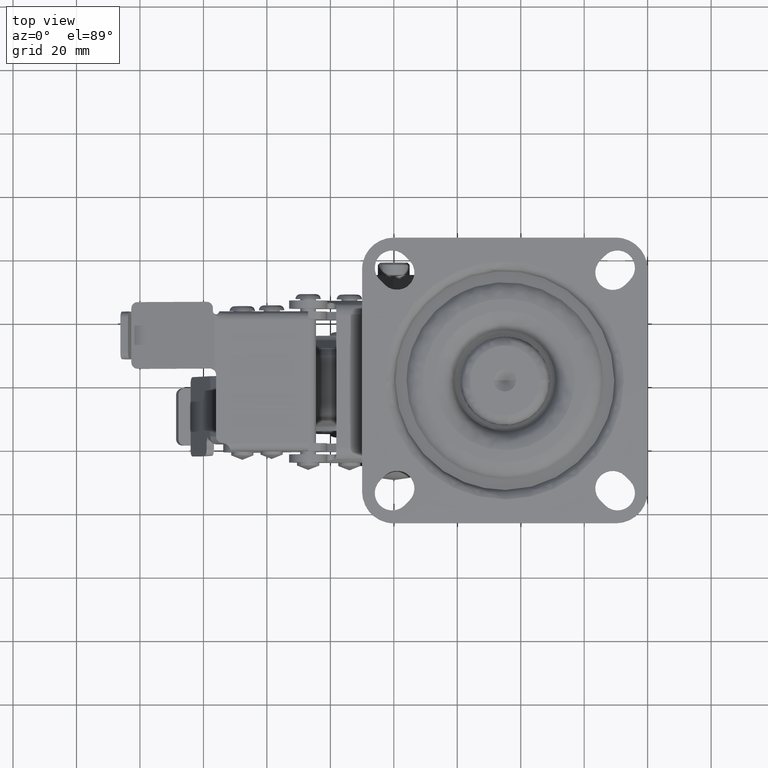
[diagram: clean part render]
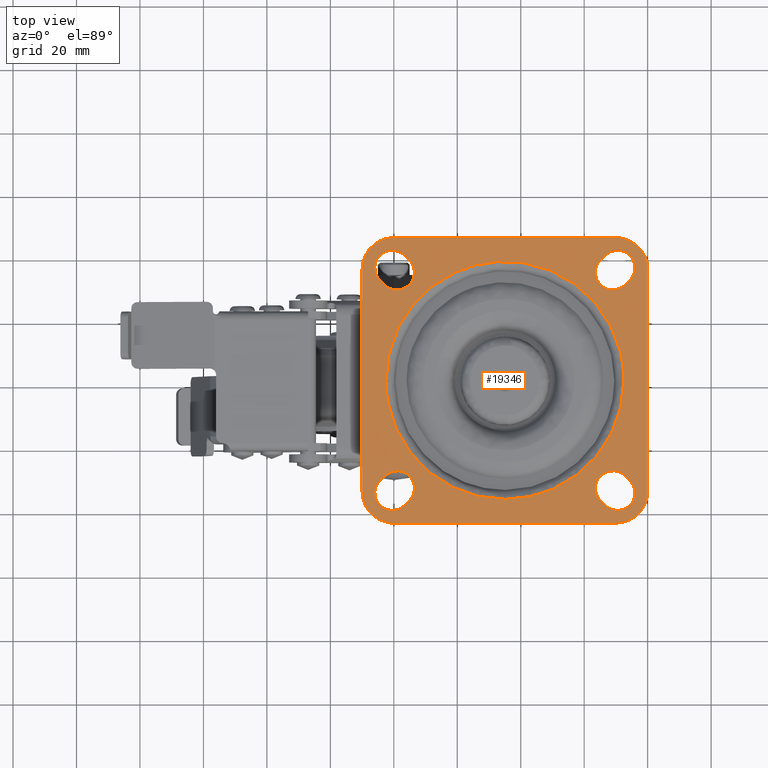
[diagram: same view with one face highlighted and labeled with its STEP entity id]
A machine part, top view. The second image highlights one B-rep face of the part: STEP entity #19346.
In plain terms, the highlighted face is a freeform B-spline surface patch.
Its self-contained STEP definition (entity closure, byte-faithful):
#18010=CARTESIAN_POINT('',(-2.497039154605587,-0.471226495959398,82.000007999999980));
#18011=VERTEX_POINT('',#18010);
#18023=CARTESIAN_POINT('',(35.235554214804182,-37.499260182194099,82.000007999999994));
#18024=VERTEX_POINT('',#18023);
#18025=CARTESIAN_POINT('',(35.235554214804182,-37.499260182194099,82.000007999999994));
#18026=CARTESIAN_POINT('',(32.714630536343812,-37.515489606949863,82.000008000000065));
#18027=CARTESIAN_POINT('',(28.587079304573741,-37.123354049378513,82.000008000000051));
#18028=CARTESIAN_POINT('',(22.964181417716240,-35.630155519232389,82.000007999999823));
#18029=CARTESIAN_POINT('',(18.858502447904090,-33.937861380260308,82.000008000000264));
#18030=CARTESIAN_POINT('',(15.108584460882710,-31.869620799225519,82.000007999999710));
#18031=CARTESIAN_POINT('',(11.402626283903940,-29.291095814778089,82.000008000000136));
#18032=CARTESIAN_POINT('',(7.958864775778971,-26.131642025318410,82.000008000000548));
#18033=CARTESIAN_POINT('',(4.558158955052188,-22.094989410288321,82.000008000000221));
#18034=CARTESIAN_POINT('',(1.476761524604560,-17.241596868981521,82.000007999997834));
#18035=CARTESIAN_POINT('',(-0.731860585724287,-11.844099561781110,82.000008000001145));
#18036=CARTESIAN_POINT('',(-2.124489622247507,-6.119935745697549,82.000007999999639));
#18037=CARTESIAN_POINT('',(-2.470335985499150,-2.610047431215478,82.000007999998616));
#18038=CARTESIAN_POINT('',(-2.497039154605587,-0.471226495959398,82.000007999999980));
#18039=B_SPLINE_CURVE_WITH_KNOTS('',3,(#18025,#18026,#18027,#18028,#18029,#18030,#18031,#18032,#18033,#18034,#18035,#18036,#18037,#18038),.UNSPECIFIED.,.F.,.U.,(4,1,1,1,1,1,1,1,1,1,1,4),(0.000000086311573,7.562834784167471,12.375538968031369,17.417447009429729,20.855121964354840,25.209457417956759,30.938866167068600,34.834864105559959,41.022652077722213,48.127156090349963,52.252332436948237,58.669270417802103),.UNSPECIFIED.);
#18040=EDGE_CURVE('',#18024,#18011,#18039,.T.);
#18042=CARTESIAN_POINT('',(72.500000000000014,0.0,82.000007999999994));
#18043=VERTEX_POINT('',#18042);
#18044=CARTESIAN_POINT('',(72.500000000000014,0.0,82.000007999999994));
#18045=CARTESIAN_POINT('',(72.500378866690426,-2.520977955862390,82.000007999999994));
#18046=CARTESIAN_POINT('',(72.059164735528000,-6.875178925467560,82.000008000000122));
#18047=CARTESIAN_POINT('',(70.415865282438034,-12.699029120922081,82.000007999999809));
#18048=CARTESIAN_POINT('',(68.159419752960616,-17.812579061629020,82.000008000000136));
#18049=CARTESIAN_POINT('',(64.956795962774990,-22.861399522204920,82.000007999999852));
#18050=CARTESIAN_POINT('',(61.093528790800661,-27.122861305328069,82.000008000000250));
#18051=CARTESIAN_POINT('',(57.368276375380340,-30.182757991823710,82.000007999999696));
#18052=CARTESIAN_POINT('',(53.412344381982329,-32.796315888213392,82.000008000000378));
#18053=CARTESIAN_POINT('',(48.447386572119719,-35.209665584720298,82.000007999998303));
#18054=CARTESIAN_POINT('',(42.031641781101818,-37.042122967330783,82.000008000003660));
#18055=CARTESIAN_POINT('',(37.527286537133008,-37.485086137952919,82.000007999996697));
#18056=CARTESIAN_POINT('',(35.235554214804182,-37.499260182194099,82.000007999999994));
#18057=B_SPLINE_CURVE_WITH_KNOTS('',3,(#18044,#18045,#18046,#18047,#18048,#18049,#18050,#18051,#18052,#18053,#18054,#18055,#18056),.UNSPECIFIED.,.F.,.U.,(4,1,1,1,1,1,1,1,1,1,4),(0.000000086352991,7.562851203666760,13.063101389802430,18.105012435851400,24.292816149095689,30.938933336976859,35.293267951448762,38.730968472310053,45.147940700554869,51.794109981902942,58.669397792104590),.UNSPECIFIED.);
#18058=EDGE_CURVE('',#18043,#18024,#18057,.T.);
#18060=CARTESIAN_POINT('',(32.385003065849290,37.408712768289988,82.000007999999980));
#18061=VERTEX_POINT('',#18060);
#18062=CARTESIAN_POINT('',(32.385003065849290,37.408712768289988,82.000007999999980));
#18063=CARTESIAN_POINT('',(34.782352440099622,37.576614847147859,82.000007999999738));
#18064=CARTESIAN_POINT('',(38.965691095116320,37.465865226568127,82.000008000000278));
#18065=CARTESIAN_POINT('',(44.325142756866661,36.418642260895460,82.000007999999895));
#18066=CARTESIAN_POINT('',(48.977780544333619,34.904007247510023,82.000007999999738));
#18067=CARTESIAN_POINT('',(53.048104727285889,32.989355933353700,82.000007999998687));
#18068=CARTESIAN_POINT('',(56.700348018754802,30.659284331476130,82.000008000001216));
#18069=CARTESIAN_POINT('',(59.786959318731213,28.227982971412139,82.000007999998871));
#18070=CARTESIAN_POINT('',(62.725620860025309,25.380056440555290,82.000008000000705));
#18071=CARTESIAN_POINT('',(65.459088632650207,22.017072683595920,82.000007999999738));
#18072=CARTESIAN_POINT('',(68.002040508444949,18.024862750126861,82.000008000000037));
#18073=CARTESIAN_POINT('',(70.050449058308118,13.662363940467900,82.000007999999809));
#18074=CARTESIAN_POINT('',(71.479220367864528,9.062866929131930,82.000008000000221));
#18075=CARTESIAN_POINT('',(72.309755564689567,4.566056488875709,82.000007999999710));
#18076=CARTESIAN_POINT('',(72.500054890113745,1.602132972271289,82.000008000000363));
#18077=CARTESIAN_POINT('',(72.500000000000014,0.0,82.000007999999994));
#18078=B_SPLINE_CURVE_WITH_KNOTS('',3,(#18062,#18063,#18064,#18065,#18066,#18067,#18068,#18069,#18070,#18071,#18072,#18073,#18074,#18075,#18076,#18077),.UNSPECIFIED.,.F.,.U.,(4,1,1,1,1,1,1,1,1,1,1,1,1,4),(0.000000092225712,7.209607568320955,12.496672582436849,16.341809702088479,21.869211168711200,25.954635965179168,29.319183782432720,33.644891076499768,38.210981644563383,42.296417544662702,47.823813352992119,52.630254655560186,56.715689127988739,61.522088451961103),.UNSPECIFIED.);
#18079=EDGE_CURVE('',#18061,#18043,#18078,.T.);
#18133=CARTESIAN_POINT('',(-2.499999999999995,0.0,82.000007999999994));
#18134=VERTEX_POINT('',#18133);
#18135=CARTESIAN_POINT('',(-2.499999999999995,0.0,82.000007999999994));
#18136=CARTESIAN_POINT('',(-2.500393609741418,2.565216084379840,82.000007999999625));
#18137=CARTESIAN_POINT('',(-2.046940660496134,6.962542342685151,82.000008000000562));
#18138=CARTESIAN_POINT('',(-0.511396397934136,12.332424091802229,82.000007999999681));
#18139=CARTESIAN_POINT('',(1.254732896417628,16.524675141024751,82.000008000000179));
#18140=CARTESIAN_POINT('',(3.572878477376494,20.696921612989819,82.000007999999212));
#18141=CARTESIAN_POINT('',(6.691592514130061,24.792306217448608,82.000008000001131));
#18142=CARTESIAN_POINT('',(10.201970494277100,28.239326475741709,82.000007999999852));
#18143=CARTESIAN_POINT('',(14.022717558681061,31.216903573872870,82.000008000000037));
#18144=CARTESIAN_POINT('',(18.082363496772778,33.595902034438097,82.000008000000022));
#18145=CARTESIAN_POINT('',(22.282767916813640,35.347927474019542,82.000008000000022));
#18146=CARTESIAN_POINT('',(26.849236815848499,36.723613253371077,82.000007999999994));
#18147=CARTESIAN_POINT('',(30.191594265726131,37.255594489508887,82.000008000000008));
#18148=CARTESIAN_POINT('',(32.385003065849290,37.408712768289988,82.000007999999980));
#18149=B_SPLINE_CURVE_WITH_KNOTS('',3,(#18135,#18136,#18137,#18138,#18139,#18140,#18141,#18142,#18143,#18144,#18145,#18146,#18147,#18148),.UNSPECIFIED.,.F.,.U.,(4,1,1,1,1,1,1,1,1,1,1,4),(0.000000082031747,7.695572833180087,13.192457720246740,16.710456669872759,21.327824882276520,27.484304545574378,32.101610550298687,36.059358163248930,41.995991370556148,46.173606932098842,49.691625696154432,56.287821960768092),.UNSPECIFIED.);
#18150=EDGE_CURVE('',#18134,#18061,#18149,.T.);
#18152=CARTESIAN_POINT('',(-2.497039154605587,-0.471226495959398,82.000007999999980));
#18153=CARTESIAN_POINT('',(-2.499999999999995,0.0,82.000007999999994));
#18154=QUASI_UNIFORM_CURVE('',1,(#18152,#18153),.UNSPECIFIED.,.F.,.U.);
#18155=EDGE_CURVE('',#18011,#18134,#18154,.T.);
#18936=CARTESIAN_POINT('',(-14.495499825562540,49.495499825562533,82.000007999999994));
#18937=CARTESIAN_POINT('',(84.495502239550646,49.495499825562533,82.000007999999994));
#18938=CARTESIAN_POINT('',(-14.495499825562540,-49.495502239550653,82.000007999999994));
#18939=CARTESIAN_POINT('',(84.495502239550646,-49.495502239550653,82.000007999999994));
#18940=B_SPLINE_SURFACE_WITH_KNOTS('',1,1,((#18936,#18938),(#18937,#18939)),.UNSPECIFIED.,.F.,.F.,.U.,(2,2),(2,2),(0.0,98.991002065113179),(0.0,98.991002065113179),.UNSPECIFIED.);
#18941=CARTESIAN_POINT('',(80.0,35.0,82.000008000000093));
#18942=VERTEX_POINT('',#18941);
#18943=CARTESIAN_POINT('',(70.0,45.0,82.000008000000093));
#18944=VERTEX_POINT('',#18943);
#18945=CARTESIAN_POINT('',(80.0,35.0,82.000008000000093));
#18946=CARTESIAN_POINT('',(80.000073907968599,35.654488945471662,82.000008000000221));
#18947=CARTESIAN_POINT('',(79.867023230522676,37.004367228682057,82.000007999999823));
#18948=CARTESIAN_POINT('',(79.209497551188136,39.125826772463910,82.000008000000449));
#18949=CARTESIAN_POINT('',(78.034143133678512,41.114244687521300,82.000007999999838));
#18950=CARTESIAN_POINT('',(76.338292263899817,42.852220574667257,82.000008000000889));
#18951=CARTESIAN_POINT('',(74.423159077679401,44.064941585787039,82.000007999999525));
#18952=CARTESIAN_POINT('',(72.249772190104068,44.827454906135060,82.000008000000904));
#18953=CARTESIAN_POINT('',(70.777227325805100,45.000144159784810,82.000007999999255));
#18954=CARTESIAN_POINT('',(70.0,45.0,82.000008000000093));
#18955=B_SPLINE_CURVE_WITH_KNOTS('',3,(#18945,#18946,#18947,#18948,#18949,#18950,#18951,#18952,#18953,#18954),.UNSPECIFIED.,.F.,.U.,(4,1,1,1,1,1,1,4),(0.000000162030521,1.963473488997209,4.049735908099901,6.626885396654943,8.835779466863569,11.290160716892750,13.376402627561211,15.708061828758940),.UNSPECIFIED.);
#18956=EDGE_CURVE('',#18942,#18944,#18955,.T.);
#18957=ORIENTED_EDGE('',*,*,#18956,.T.);
#18958=CARTESIAN_POINT('',(0.0,45.0,82.000008000000093));
#18959=VERTEX_POINT('',#18958);
#18960=CARTESIAN_POINT('',(70.0,45.0,82.000008000000093));
#18961=CARTESIAN_POINT('',(0.0,45.0,82.000008000000093));
#18962=QUASI_UNIFORM_CURVE('',1,(#18960,#18961),.UNSPECIFIED.,.F.,.U.);
#18963=EDGE_CURVE('',#18944,#18959,#18962,.T.);
#18964=ORIENTED_EDGE('',*,*,#18963,.T.);
#18965=CARTESIAN_POINT('',(-10.0,34.999999127335300,82.000008000000093));
#18966=VERTEX_POINT('',#18965);
#18967=CARTESIAN_POINT('',(0.0,45.0,82.000008000000093));
#18968=CARTESIAN_POINT('',(-0.818139542186070,45.000216879241293,82.000007999999994));
#18969=CARTESIAN_POINT('',(-2.086112042009881,44.843463525559578,82.000008000000022));
#18970=CARTESIAN_POINT('',(-3.958547289035787,44.237634177039943,82.000008000000179));
#18971=CARTESIAN_POINT('',(-5.450577549837250,43.451870951399712,82.000008000000179));
#18972=CARTESIAN_POINT('',(-6.899337968263791,42.306790803401157,82.000007999999525));
#18973=CARTESIAN_POINT('',(-8.269547605160046,40.776572168003533,82.000008000000463));
#18974=CARTESIAN_POINT('',(-9.304631283742676,38.896129211966823,82.000007999999895));
#18975=CARTESIAN_POINT('',(-9.886663818935062,36.840731728854379,82.000008000000278));
#18976=CARTESIAN_POINT('',(-10.000061134689320,35.613588896925187,82.000007999999951));
#18977=CARTESIAN_POINT('',(-10.0,34.999999127335300,82.000008000000093));
#18978=B_SPLINE_CURVE_WITH_KNOTS('',3,(#18967,#18968,#18969,#18970,#18971,#18972,#18973,#18974,#18975,#18976,#18977),.UNSPECIFIED.,.F.,.U.,(4,1,1,1,1,1,1,1,4),(0.000000161852675,2.454359935840492,3.804295021906183,5.890528464199390,7.485920605631939,9.326650025769581,12.026485992671390,13.867290678295850,15.708062320610400),.UNSPECIFIED.);
#18979=EDGE_CURVE('',#18959,#18966,#18978,.T.);
#18980=ORIENTED_EDGE('',*,*,#18979,.T.);
#18981=CARTESIAN_POINT('',(-10.0,-35.0,82.000008000000093));
#18982=VERTEX_POINT('',#18981);
#18983=CARTESIAN_POINT('',(-10.0,34.999999127335300,82.000008000000093));
#18984=CARTESIAN_POINT('',(-10.0,-35.0,82.000008000000093));
#18985=QUASI_UNIFORM_CURVE('',1,(#18983,#18984),.UNSPECIFIED.,.F.,.U.);
#18986=EDGE_CURVE('',#18966,#18982,#18985,.T.);
#18987=ORIENTED_EDGE('',*,*,#18986,.T.);
#18988=CARTESIAN_POINT('',(-0.000000523598811,-45.0,82.000008000000093));
#18989=VERTEX_POINT('',#18988);
#18990=CARTESIAN_POINT('',(-10.0,-35.0,82.000008000000093));
#18991=CARTESIAN_POINT('',(-10.000087786441229,-35.654494677795952,82.000008000000093));
#18992=CARTESIAN_POINT('',(-9.875052767093189,-36.922548369941033,82.000008000000136));
#18993=CARTESIAN_POINT('',(-9.314346527419971,-38.812982889761763,82.000007999999852));
#18994=CARTESIAN_POINT('',(-8.413553271820335,-40.523382826680333,82.000008000000719));
#18995=CARTESIAN_POINT('',(-7.249558151524193,-41.959489289909087,82.000007999999369));
#18996=CARTESIAN_POINT('',(-6.044115436691523,-43.012222876350187,82.000008000001216));
#18997=CARTESIAN_POINT('',(-4.664007237898335,-43.898113950886703,82.000007999998218));
#18998=CARTESIAN_POINT('',(-2.699540338132075,-44.740369538220023,82.000008000001799));
#18999=CARTESIAN_POINT('',(-1.022717224599562,-45.000540426067239,82.000007999999454));
#19000=CARTESIAN_POINT('',(-0.000000523598811,-45.0,82.000008000000093));
#19001=B_SPLINE_CURVE_WITH_KNOTS('',3,(#18990,#18991,#18992,#18993,#18994,#18995,#18996,#18997,#18998,#18999,#19000),.UNSPECIFIED.,.F.,.U.,(4,1,1,1,1,1,1,1,4),(0.000000162090448,1.963473452165475,3.804294831523768,5.890528169568537,7.731358103499349,9.326649559275452,10.676570357555409,12.640095863441740,15.708061533648239),.UNSPECIFIED.);
#19002=EDGE_CURVE('',#18982,#18989,#19001,.T.);
#19003=ORIENTED_EDGE('',*,*,#19002,.T.);
#19004=CARTESIAN_POINT('',(70.0,-45.0,82.000008000000093));
#19005=VERTEX_POINT('',#19004);
#19006=CARTESIAN_POINT('',(-0.000000523598811,-45.0,82.000008000000093));
#19007=CARTESIAN_POINT('',(70.0,-45.0,82.000008000000093));
#19008=QUASI_UNIFORM_CURVE('',1,(#19006,#19007),.UNSPECIFIED.,.F.,.U.);
#19009=EDGE_CURVE('',#18989,#19005,#19008,.T.);
#19010=ORIENTED_EDGE('',*,*,#19009,.T.);
#19011=CARTESIAN_POINT('',(80.0,-35.0,82.000008000000093));
#19012=VERTEX_POINT('',#19011);
#19013=CARTESIAN_POINT('',(70.0,-45.0,82.000008000000093));
#19014=CARTESIAN_POINT('',(70.654491713493385,-45.000083564249401,82.000007999999980));
#19015=CARTESIAN_POINT('',(71.840729655913407,-44.883093706141551,82.000008000000349));
#19016=CARTESIAN_POINT('',(73.735952833826758,-44.346249776582873,82.000008000000037));
#19017=CARTESIAN_POINT('',(75.386183723378196,-43.502777694459887,82.000007999999752));
#19018=CARTESIAN_POINT('',(76.995996078140081,-42.230513810341002,82.000008000000506));
#19019=CARTESIAN_POINT('',(78.393959541517816,-40.610058543014922,82.000007999999994));
#19020=CARTESIAN_POINT('',(79.388853167542450,-38.663513669082427,82.000008000000108));
#19021=CARTESIAN_POINT('',(79.901318878623826,-36.718016581546550,82.000008000000122));
#19022=CARTESIAN_POINT('',(80.000045159082930,-35.572675513106503,82.000008000000648));
#19023=CARTESIAN_POINT('',(80.0,-35.0,82.000008000000093));
#19024=B_SPLINE_CURVE_WITH_KNOTS('',3,(#19013,#19014,#19015,#19016,#19017,#19018,#19019,#19020,#19021,#19022,#19023),.UNSPECIFIED.,.F.,.U.,(4,1,1,1,1,1,1,1,4),(0.000000162004154,1.963473488975795,3.558856671220649,5.890528280057204,7.485920371103386,9.694802587288667,12.271932114299780,13.990030007249290,15.708061828758900),.UNSPECIFIED.);
#19025=EDGE_CURVE('',#19005,#19012,#19024,.T.);
#19026=ORIENTED_EDGE('',*,*,#19025,.T.);
#19027=CARTESIAN_POINT('',(80.0,-35.0,82.000008000000093));
#19028=CARTESIAN_POINT('',(80.0,35.0,82.000008000000093));
#19029=QUASI_UNIFORM_CURVE('',1,(#19027,#19028),.UNSPECIFIED.,.F.,.U.);
#19030=EDGE_CURVE('',#19012,#18942,#19029,.T.);
#19031=ORIENTED_EDGE('',*,*,#19030,.T.);
#19032=EDGE_LOOP('',(#18957,#18964,#18980,#18987,#19003,#19010,#19026,#19031));
#19033=FACE_OUTER_BOUND('',#19032,.T.);
#19034=CARTESIAN_POINT('',(3.389087228648650,39.389087364403352,82.000008000000093));
#19035=VERTEX_POINT('',#19034);
#19036=CARTESIAN_POINT('',(4.889087228648620,37.889087364403402,82.000008000000093));
#19037=VERTEX_POINT('',#19036);
#19038=CARTESIAN_POINT('',(3.389087228648650,39.389087364403352,82.000008000000093));
#19039=CARTESIAN_POINT('',(4.889087228648620,37.889087364403402,82.000008000000093));
#19040=QUASI_UNIFORM_CURVE('',1,(#19038,#19039),.UNSPECIFIED.,.F.,.U.);
#19041=EDGE_CURVE('',#19035,#19037,#19040,.T.);
#19042=ORIENTED_EDGE('',*,*,#19041,.T.);
#19043=CARTESIAN_POINT('',(4.889087342201306,30.110912749149289,82.000008000000079));
#19044=VERTEX_POINT('',#19043);
#19045=CARTESIAN_POINT('',(4.889087342201306,30.110912749149289,82.000008000000079));
#19046=CARTESIAN_POINT('',(5.366893980975049,30.587794935507599,82.000008000000420));
#19047=CARTESIAN_POINT('',(5.935518868609748,31.418458933793520,82.000007999999710));
#19048=CARTESIAN_POINT('',(6.390893468254395,32.742449814722377,82.000008000000037));
#19049=CARTESIAN_POINT('',(6.534092294941371,33.796626555466261,82.000008000000904));
#19050=CARTESIAN_POINT('',(6.456372559844438,34.946306209121417,82.000007999999340));
#19051=CARTESIAN_POINT('',(6.190736129876738,35.906188944542023,82.000008000000506));
#19052=CARTESIAN_POINT('',(5.692619875506923,36.942787608281783,82.000008000000051));
#19053=CARTESIAN_POINT('',(5.239221596268012,37.539202702129430,82.000008000000349));
#19054=CARTESIAN_POINT('',(4.889087228648620,37.889087364403402,82.000008000000093));
#19055=B_SPLINE_CURVE_WITH_KNOTS('',3,(#19045,#19046,#19047,#19048,#19049,#19050,#19051,#19052,#19053,#19054),.UNSPECIFIED.,.F.,.U.,(4,1,1,1,1,1,1,4),(0.000000205958507,2.024865500902002,2.969815811631286,4.184753137689488,5.197134094550249,6.412079437642705,7.154538742971457,8.639434023529429),.UNSPECIFIED.);
#19056=EDGE_CURVE('',#19044,#19037,#19055,.T.);
#19057=ORIENTED_EDGE('',*,*,#19056,.F.);
#19058=CARTESIAN_POINT('',(-2.889087296525990,30.110912703473950,82.000008000000093));
#19059=VERTEX_POINT('',#19058);
#19060=CARTESIAN_POINT('',(-2.889087296525990,30.110912703473950,82.000008000000093));
#19061=CARTESIAN_POINT('',(-2.555080533373290,29.776754833366450,82.000008000000108));
#19062=CARTESIAN_POINT('',(-1.764345029301171,29.167550867857031,82.000008000000577));
#19063=CARTESIAN_POINT('',(-0.459503242915323,28.636345288663509,82.000007999998573));
#19064=CARTESIAN_POINT('',(0.796640422228880,28.465926517314351,82.000008000002325));
#19065=CARTESIAN_POINT('',(1.946310795769874,28.543634914953049,82.000007999998459));
#19066=CARTESIAN_POINT('',(2.906180183911404,28.809272490325451,82.000008000000349));
#19067=CARTESIAN_POINT('',(3.942798980214220,29.307352648186040,82.000008000001671));
#19068=CARTESIAN_POINT('',(4.539198351572574,29.760789884785119,82.000007999998942));
#19069=CARTESIAN_POINT('',(4.889087342201306,30.110912749149289,82.000008000000079));
#19070=B_SPLINE_CURVE_WITH_KNOTS('',3,(#19060,#19061,#19062,#19063,#19064,#19065,#19066,#19067,#19068,#19069),.UNSPECIFIED.,.F.,.U.,(4,1,1,1,1,1,1,4),(0.000000205965737,1.417387216606544,2.969815818072879,4.184753146777508,5.197134105830720,6.412079451530653,7.154538758477041,8.639434042239317),.UNSPECIFIED.);
#19071=EDGE_CURVE('',#19059,#19044,#19070,.T.);
#19072=ORIENTED_EDGE('',*,*,#19071,.F.);
#19073=CARTESIAN_POINT('',(-4.389086000000001,31.610914000000040,82.000008000000093));
#19074=VERTEX_POINT('',#19073);
#19075=CARTESIAN_POINT('',(-2.889087296525990,30.110912703473950,82.000008000000093));
#19076=CARTESIAN_POINT('',(-4.389086000000001,31.610914000000040,82.000008000000093));
#19077=QUASI_UNIFORM_CURVE('',1,(#19075,#19076),.UNSPECIFIED.,.F.,.U.);
#19078=EDGE_CURVE('',#19059,#19074,#19077,.T.);
#19079=ORIENTED_EDGE('',*,*,#19078,.T.);
#19080=CARTESIAN_POINT('',(-4.389088323057218,39.389086269994081,82.000008000000108));
#19081=VERTEX_POINT('',#19080);
#19082=CARTESIAN_POINT('',(-4.389088323057218,39.389086269994081,82.000008000000108));
#19083=CARTESIAN_POINT('',(-4.659577257576263,39.118677911791778,82.000008000000477));
#19084=CARTESIAN_POINT('',(-5.158016793943738,38.503541522648469,82.000007999999681));
#19085=CARTESIAN_POINT('',(-5.697509600256539,37.431958854150871,82.000008000000136));
#19086=CARTESIAN_POINT('',(-5.950448238753430,36.421875181572460,82.000008000000221));
#19087=CARTESIAN_POINT('',(-6.026686193404989,35.387808648108937,82.000008000000136));
#19088=CARTESIAN_POINT('',(-5.909342091436415,34.193823584539452,82.000007999999880));
#19089=CARTESIAN_POINT('',(-5.385326587775912,32.810109837362269,82.000008000001074));
#19090=CARTESIAN_POINT('',(-4.739147458544208,31.960827513752800,82.000007999999667));
#19091=CARTESIAN_POINT('',(-4.389086000000001,31.610914000000040,82.000008000000093));
#19092=B_SPLINE_CURVE_WITH_KNOTS('',3,(#19082,#19083,#19084,#19085,#19086,#19087,#19088,#19089,#19090,#19091),.UNSPECIFIED.,.F.,.U.,(4,1,1,1,1,1,1,4),(0.000000206227456,1.147409377229230,2.362346005353661,3.577287894132375,4.252282096908106,5.467109985041398,7.154536857788865,8.639431747543750),.UNSPECIFIED.);
#19093=EDGE_CURVE('',#19081,#19074,#19092,.T.);
#19094=ORIENTED_EDGE('',*,*,#19093,.F.);
#19095=CARTESIAN_POINT('',(3.389087228648650,39.389087364403352,82.000008000000093));
#19096=CARTESIAN_POINT('',(3.055098326913333,39.723279305408411,82.000008000000534));
#19097=CARTESIAN_POINT('',(2.336185191739386,40.276958122550617,82.000007999999298));
#19098=CARTESIAN_POINT('',(1.131857711734824,40.802043237822822,82.000008000000449));
#19099=CARTESIAN_POINT('',(-0.203388528593371,41.050716504484591,82.000007999999823));
#19100=CARTESIAN_POINT('',(-1.382240566287259,40.971028809176190,82.000008000000875));
#19101=CARTESIAN_POINT('',(-2.532129580332662,40.645118623705670,82.000007999999340));
#19102=CARTESIAN_POINT('',(-3.485977874540629,40.172290062005288,82.000008000000037));
#19103=CARTESIAN_POINT('',(-4.118681590409552,39.659564265477812,82.000008000000449));
#19104=CARTESIAN_POINT('',(-4.389088323057218,39.389086269994081,82.000008000000108));
#19105=B_SPLINE_CURVE_WITH_KNOTS('',3,(#19095,#19096,#19097,#19098,#19099,#19100,#19101,#19102,#19103,#19104),.UNSPECIFIED.,.F.,.U.,(4,1,1,1,1,1,1,4),(0.000000205425907,1.417387268921277,2.699837969852504,3.914793950122056,5.467111641987454,6.209585932279865,7.492040017143624,8.639434363327512),.UNSPECIFIED.);
#19106=EDGE_CURVE('',#19035,#19081,#19105,.T.);
#19107=ORIENTED_EDGE('',*,*,#19106,.F.);
#19108=EDGE_LOOP('',(#19042,#19057,#19072,#19079,#19094,#19107));
#19109=FACE_BOUND('',#19108,.T.);
#19110=CARTESIAN_POINT('',(66.607738373298801,-39.385910373298699,82.000008000000093));
#19111=VERTEX_POINT('',#19110);
#19112=CARTESIAN_POINT('',(65.110912431964309,-37.889087025016451,82.000008000000093));
#19113=VERTEX_POINT('',#19112);
#19114=CARTESIAN_POINT('',(66.607738373298801,-39.385910373298699,82.000008000000093));
#19115=CARTESIAN_POINT('',(65.110912431964309,-37.889087025016451,82.000008000000093));
#19116=QUASI_UNIFORM_CURVE('',1,(#19114,#19115),.UNSPECIFIED.,.F.,.U.);
#19117=EDGE_CURVE('',#19111,#19113,#19116,.T.);
#19118=ORIENTED_EDGE('',*,*,#19117,.T.);
#19119=CARTESIAN_POINT('',(65.110911164433730,-30.110914242514870,82.000008000000079));
#19120=VERTEX_POINT('',#19119);
#19121=CARTESIAN_POINT('',(65.110911164433730,-30.110914242514870,82.000008000000079));
#19122=CARTESIAN_POINT('',(64.776723678554291,-30.444905039551180,82.000008000000065));
#19123=CARTESIAN_POINT('',(64.292278091964732,-31.073965632339910,82.000008000000065));
#19124=CARTESIAN_POINT('',(63.780565073259133,-32.155899144469799,82.000008000000022));
#19125=CARTESIAN_POINT('',(63.499983323368227,-33.275695715915568,82.000008000000392));
#19126=CARTESIAN_POINT('',(63.477088283970282,-34.521344610538243,82.000007999999738));
#19127=CARTESIAN_POINT('',(63.748926309397142,-35.805801525183917,82.000008000000761));
#19128=CARTESIAN_POINT('',(64.299188903542230,-36.950849888835833,82.000008000000378));
#19129=CARTESIAN_POINT('',(64.840442890759846,-37.618674970533647,82.000007999999738));
#19130=CARTESIAN_POINT('',(65.110912431964309,-37.889087025016451,82.000008000000093));
#19131=B_SPLINE_CURVE_WITH_KNOTS('',3,(#19121,#19122,#19123,#19124,#19125,#19126,#19127,#19128,#19129,#19130),.UNSPECIFIED.,.F.,.U.,(4,1,1,1,1,1,1,4),(0.000000206401070,1.417386974162628,2.362346228335319,3.577288231441206,4.859630717638860,6.074591338259014,7.492038454380174,8.639432562680465),.UNSPECIFIED.);
#19132=EDGE_CURVE('',#19120,#19113,#19131,.T.);
#19133=ORIENTED_EDGE('',*,*,#19132,.F.);
#19134=CARTESIAN_POINT('',(72.889087228648492,-30.110912635596652,82.000008000000093));
#19135=VERTEX_POINT('',#19134);
#19136=CARTESIAN_POINT('',(72.889087228648492,-30.110912635596652,82.000008000000093));
#19137=CARTESIAN_POINT('',(72.475641205305536,-29.697039343331848,82.000008000000108));
#19138=CARTESIAN_POINT('',(71.736730341350949,-29.163563601477041,82.000008000000122));
#19139=CARTESIAN_POINT('',(70.562479811093212,-28.694147246324761,82.000007999999966));
#19140=CARTESIAN_POINT('',(69.342991416542304,-28.451224277494600,82.000008000000520));
#19141=CARTESIAN_POINT('',(68.092950428696312,-28.520421946976409,82.000007999999525));
#19142=CARTESIAN_POINT('',(66.904453492901155,-28.881143892182571,82.000008000000108));
#19143=CARTESIAN_POINT('',(65.961311443843471,-29.370477800990830,82.000008000000562));
#19144=CARTESIAN_POINT('',(65.381314020359554,-29.840426718022830,82.000007999999511));
#19145=CARTESIAN_POINT('',(65.110911164433730,-30.110914242514870,82.000008000000079));
#19146=B_SPLINE_CURVE_WITH_KNOTS('',3,(#19136,#19137,#19138,#19139,#19140,#19141,#19142,#19143,#19144,#19145),.UNSPECIFIED.,.F.,.U.,(4,1,1,1,1,1,1,4),(0.000000205563929,1.754882834469328,2.699838224681404,3.779803112526017,5.467112157400234,6.412080294669650,7.492040723775991,8.639435178465865),.UNSPECIFIED.);
#19147=EDGE_CURVE('',#19135,#19120,#19146,.T.);
#19148=ORIENTED_EDGE('',*,*,#19147,.F.);
#19149=CARTESIAN_POINT('',(74.389088999999899,-31.610912000000098,82.000008000000093));
#19150=VERTEX_POINT('',#19149);
#19151=CARTESIAN_POINT('',(72.889087228648492,-30.110912635596652,82.000008000000093));
#19152=CARTESIAN_POINT('',(74.389088999999899,-31.610912000000098,82.000008000000093));
#19153=QUASI_UNIFORM_CURVE('',1,(#19151,#19152),.UNSPECIFIED.,.F.,.U.);
#19154=EDGE_CURVE('',#19135,#19150,#19153,.T.);
#19155=ORIENTED_EDGE('',*,*,#19154,.T.);
#19156=CARTESIAN_POINT('',(74.387499522393810,-39.390674422200789,82.000008000000108));
#19157=VERTEX_POINT('',#19156);
#19158=CARTESIAN_POINT('',(74.387499522393810,-39.390674422200789,82.000008000000108));
#19159=CARTESIAN_POINT('',(74.721912351333586,-39.056730783511760,82.000008000000136));
#19160=CARTESIAN_POINT('',(75.178999869969260,-38.463631549127527,82.000007999999951));
#19161=CARTESIAN_POINT('',(75.664292839939321,-37.470092924821309,82.000008000000193));
#19162=CARTESIAN_POINT('',(75.960677470255035,-36.449443736389853,82.000008000000122));
#19163=CARTESIAN_POINT('',(76.028095157889709,-35.454811744506593,82.000007999999454));
#19164=CARTESIAN_POINT('',(75.920327764590851,-34.423648474772143,82.000008000001301));
#19165=CARTESIAN_POINT('',(75.660810430213218,-33.485249678901702,82.000007999999696));
#19166=CARTESIAN_POINT('',(75.129692564952265,-32.461553302685381,82.000008000000904));
#19167=CARTESIAN_POINT('',(74.659647258874401,-31.881383973912119,82.000007999998857));
#19168=CARTESIAN_POINT('',(74.389088999999899,-31.610912000000098,82.000008000000093));
#19169=B_SPLINE_CURVE_WITH_KNOTS('',3,(#19158,#19159,#19160,#19161,#19162,#19163,#19164,#19165,#19166,#19167,#19168),.UNSPECIFIED.,.F.,.U.,(4,1,1,1,1,1,1,1,4),(0.000000206219994,1.417754492920412,2.227934212124285,3.308176231374929,4.590850936757406,5.198484963591699,6.413746126428906,7.493987143706975,8.641679671131843),.UNSPECIFIED.);
#19170=EDGE_CURVE('',#19157,#19150,#19169,.T.);
#19171=ORIENTED_EDGE('',*,*,#19170,.F.);
#19172=CARTESIAN_POINT('',(66.607738373298801,-39.385910373298699,82.000008000000093));
#19173=CARTESIAN_POINT('',(66.877995753006886,-39.656686062368451,82.000008000000022));
#19174=CARTESIAN_POINT('',(67.492899281065931,-40.155766530792562,82.000008000000136));
#19175=CARTESIAN_POINT('',(68.422849299801342,-40.624736347404053,82.000008000000463));
#19176=CARTESIAN_POINT('',(69.395777527087475,-40.914064882946057,82.000007999999326));
#19177=CARTESIAN_POINT('',(70.226069323457665,-41.017004525364072,82.000008000001145));
#19178=CARTESIAN_POINT('',(71.217480452954604,-40.981104819648991,82.000007999999966));
#19179=CARTESIAN_POINT('',(72.303039755345836,-40.752049082570188,82.000007999999610));
#19180=CARTESIAN_POINT('',(73.448680187773334,-40.202222808417197,82.000008000000605));
#19181=CARTESIAN_POINT('',(74.116904568013993,-39.661100416879911,82.000007999999681));
#19182=CARTESIAN_POINT('',(74.387499522393810,-39.390674422200789,82.000008000000108));
#19183=B_SPLINE_CURVE_WITH_KNOTS('',3,(#19172,#19173,#19174,#19175,#19176,#19177,#19178,#19179,#19180,#19181,#19182),.UNSPECIFIED.,.F.,.U.,(4,1,1,1,1,1,1,1,4),(0.000000206262053,1.147704755549581,2.362960223420184,3.105604897948387,4.185840696148085,4.860894691381894,6.076171349025676,7.493987172158963,8.641679703932713),.UNSPECIFIED.);
#19184=EDGE_CURVE('',#19111,#19157,#19183,.T.);
#19185=ORIENTED_EDGE('',*,*,#19184,.F.);
#19186=EDGE_LOOP('',(#19118,#19133,#19148,#19155,#19171,#19185));
#19187=FACE_BOUND('',#19186,.T.);
#19188=CARTESIAN_POINT('',(-4.389087296525981,-31.610912703474000,82.000008000000093));
#19189=VERTEX_POINT('',#19188);
#19190=CARTESIAN_POINT('',(-2.889087296525980,-30.110912703473950,82.000008000000093));
#19191=VERTEX_POINT('',#19190);
#19192=CARTESIAN_POINT('',(-4.389087296525981,-31.610912703474000,82.000008000000093));
#19193=CARTESIAN_POINT('',(-2.889087296525980,-30.110912703473950,82.000008000000093));
#19194=QUASI_UNIFORM_CURVE('',1,(#19192,#19193),.UNSPECIFIED.,.F.,.U.);
#19195=EDGE_CURVE('',#19189,#19191,#19194,.T.);
#19196=ORIENTED_EDGE('',*,*,#19195,.T.);
#19197=CARTESIAN_POINT('',(4.889087318728131,-30.110912725676108,82.000008000000093));
#19198=VERTEX_POINT('',#19197);
#19199=CARTESIAN_POINT('',(4.889087318728131,-30.110912725676108,82.000008000000093));
#19200=CARTESIAN_POINT('',(4.443900967949896,-29.665112468042320,82.000008000000150));
#19201=CARTESIAN_POINT('',(3.622206552076739,-29.087303803310441,82.000007999999923));
#19202=CARTESIAN_POINT('',(2.281127936702242,-28.607578071473579,82.000008000000193));
#19203=CARTESIAN_POINT('',(0.978207318965781,-28.438550987511910,82.000008000000122));
#19204=CARTESIAN_POINT('',(-0.328750377971383,-28.608025915333229,82.000008000000207));
#19205=CARTESIAN_POINT('',(-1.699788782760879,-29.136882019322609,82.000008000000236));
#19206=CARTESIAN_POINT('',(-2.475644933179577,-29.697045121587280,82.000007999999980));
#19207=CARTESIAN_POINT('',(-2.889087296525980,-30.110912703473950,82.000008000000093));
#19208=B_SPLINE_CURVE_WITH_KNOTS('',3,(#19199,#19200,#19201,#19202,#19203,#19204,#19205,#19206,#19207),.UNSPECIFIED.,.F.,.U.,(4,1,1,1,1,1,4),(0.000000205955159,1.889872824277007,2.969815811630080,4.252283216638593,5.804612404637203,6.884558781508039,8.639434023529400),.UNSPECIFIED.);
#19209=EDGE_CURVE('',#19198,#19191,#19208,.T.);
#19210=ORIENTED_EDGE('',*,*,#19209,.F.);
#19211=CARTESIAN_POINT('',(4.889087228648651,-37.889087364403352,82.000008000000093));
#19212=VERTEX_POINT('',#19211);
#19213=CARTESIAN_POINT('',(4.889087228648651,-37.889087364403352,82.000008000000093));
#19214=CARTESIAN_POINT('',(5.159578834291758,-37.618681814374732,82.000007999999767));
#19215=CARTESIAN_POINT('',(5.629522107688199,-37.038679383273909,82.000008000000477));
#19216=CARTESIAN_POINT('',(6.087640637909496,-36.155749535198588,82.000007999999923));
#19217=CARTESIAN_POINT('',(6.400039923174717,-35.190264769185639,82.000008000000705));
#19218=CARTESIAN_POINT('',(6.534071066848292,-34.203379718145243,82.000007999998715));
#19219=CARTESIAN_POINT('',(6.445889411697667,-32.895842256046912,82.000008000001444));
#19220=CARTESIAN_POINT('',(5.983356493533287,-31.466429829891080,82.000007999999653));
#19221=CARTESIAN_POINT('',(5.302951525635312,-30.524341391677190,82.000007999999411));
#19222=CARTESIAN_POINT('',(4.889087318728131,-30.110912725676108,82.000008000000093));
#19223=B_SPLINE_CURVE_WITH_KNOTS('',3,(#19213,#19214,#19215,#19216,#19217,#19218,#19219,#19220,#19221,#19222),.UNSPECIFIED.,.F.,.U.,(4,1,1,1,1,1,1,4),(0.000000205968023,1.147409681886313,2.227355488786113,2.969815818073377,4.184753146777580,5.197134105830521,6.884558796427793,8.639434042239280),.UNSPECIFIED.);
#19224=EDGE_CURVE('',#19212,#19198,#19223,.T.);
#19225=ORIENTED_EDGE('',*,*,#19224,.F.);
#19226=CARTESIAN_POINT('',(3.389091000000000,-39.389088000000051,82.000008000000093));
#19227=VERTEX_POINT('',#19226);
#19228=CARTESIAN_POINT('',(4.889087228648651,-37.889087364403352,82.000008000000093));
#19229=CARTESIAN_POINT('',(3.389091000000000,-39.389088000000051,82.000008000000093));
#19230=QUASI_UNIFORM_CURVE('',1,(#19228,#19229),.UNSPECIFIED.,.F.,.U.);
#19231=EDGE_CURVE('',#19212,#19227,#19230,.T.);
#19232=ORIENTED_EDGE('',*,*,#19231,.T.);
#19233=CARTESIAN_POINT('',(-4.389085433051831,-39.389089159999202,82.000008000000093));
#19234=VERTEX_POINT('',#19233);
#19235=CARTESIAN_POINT('',(-4.389085433051831,-39.389089159999202,82.000008000000093));
#19236=CARTESIAN_POINT('',(-4.055092131360405,-39.723280745383143,82.000007999999966));
#19237=CARTESIAN_POINT('',(-3.461975877182572,-40.180018165048757,82.000008000000363));
#19238=CARTESIAN_POINT('',(-2.468544395631426,-40.664877237048671,82.000007999999454));
#19239=CARTESIAN_POINT('',(-1.448075356211996,-40.960884790601170,82.000008000001131));
#19240=CARTESIAN_POINT('',(-0.453694348351718,-41.028075453465043,82.000007999999156));
#19241=CARTESIAN_POINT('',(0.577183106530965,-40.920149787036593,82.000008000001472));
#19242=CARTESIAN_POINT('',(1.515298359006932,-40.660573651700737,82.000008000000079));
#19243=CARTESIAN_POINT('',(2.538687395616949,-40.129515843427271,82.000008000000307));
#19244=CARTESIAN_POINT('',(3.118687595520307,-39.659574397563333,82.000008000000079));
#19245=CARTESIAN_POINT('',(3.389091000000000,-39.389088000000051,82.000008000000093));
#19246=B_SPLINE_CURVE_WITH_KNOTS('',3,(#19235,#19236,#19237,#19238,#19239,#19240,#19241,#19242,#19243,#19244,#19245),.UNSPECIFIED.,.F.,.U.,(4,1,1,1,1,1,1,1,4),(0.000000206069780,1.417387564696973,2.227356035763415,3.307317826725579,4.589659112329995,5.197135381584420,6.412081025968278,7.492041577454399,8.639436163531029),.UNSPECIFIED.);
#19247=EDGE_CURVE('',#19234,#19227,#19246,.T.);
#19248=ORIENTED_EDGE('',*,*,#19247,.F.);
#19249=CARTESIAN_POINT('',(-4.389087296525981,-31.610912703474000,82.000008000000093));
#19250=CARTESIAN_POINT('',(-4.866842904815649,-32.087835889408403,82.000008000000264));
#19251=CARTESIAN_POINT('',(-5.435562892946597,-32.918425488537281,82.000007999999752));
#19252=CARTESIAN_POINT('',(-5.890882379252747,-34.242454891145272,82.000008000000463));
#19253=CARTESIAN_POINT('',(-6.034084469872623,-35.296626935667533,82.000007999999880));
#19254=CARTESIAN_POINT('',(-5.950335464433747,-36.536496007144571,82.000008000000577));
#19255=CARTESIAN_POINT('',(-5.515507219349469,-37.970465068538637,82.000007999998687));
#19256=CARTESIAN_POINT('',(-4.850811727504116,-38.928036199454560,82.000008000001074));
#19257=CARTESIAN_POINT('',(-4.389085433051831,-39.389089159999202,82.000008000000093));
#19258=B_SPLINE_CURVE_WITH_KNOTS('',3,(#19249,#19250,#19251,#19252,#19253,#19254,#19255,#19256,#19257),.UNSPECIFIED.,.F.,.U.,(4,1,1,1,1,1,4),(0.000000206066279,2.024866006941010,2.969816553691811,4.184754183065532,5.197135392859698,6.682067267261353,8.639436182241262),.UNSPECIFIED.);
#19259=EDGE_CURVE('',#19189,#19234,#19258,.T.);
#19260=ORIENTED_EDGE('',*,*,#19259,.F.);
#19261=EDGE_LOOP('',(#19196,#19210,#19225,#19232,#19248,#19260));
#19262=FACE_BOUND('',#19261,.T.);
#19263=CARTESIAN_POINT('',(66.610912703473900,39.389087296526050,82.000008000000093));
#19264=VERTEX_POINT('',#19263);
#19265=CARTESIAN_POINT('',(65.110912703473900,37.889087296526050,82.000008000000093));
#19266=VERTEX_POINT('',#19265);
#19267=CARTESIAN_POINT('',(66.610912703473900,39.389087296526050,82.000008000000093));
#19268=CARTESIAN_POINT('',(65.110912703473900,37.889087296526050,82.000008000000093));
#19269=QUASI_UNIFORM_CURVE('',1,(#19267,#19268),.UNSPECIFIED.,.F.,.U.);
#19270=EDGE_CURVE('',#19264,#19266,#19269,.T.);
#19271=ORIENTED_EDGE('',*,*,#19270,.F.);
#19272=CARTESIAN_POINT('',(74.389090636524557,39.389083956523613,82.000008000000093));
#19273=VERTEX_POINT('',#19272);
#19274=CARTESIAN_POINT('',(74.389090636524557,39.389083956523613,82.000008000000093));
#19275=CARTESIAN_POINT('',(74.118682490941382,39.659569592790312,82.000007999999966));
#19276=CARTESIAN_POINT('',(73.503542792754885,40.158032240545310,82.000008000000349));
#19277=CARTESIAN_POINT('',(72.613932965733483,40.605842129892707,82.000007999999823));
#19278=CARTESIAN_POINT('',(71.645411103342454,40.906146605235413,82.000008000000221));
#19279=CARTESIAN_POINT('',(70.703373473365914,41.034087317554373,82.000008000000292));
#19280=CARTESIAN_POINT('',(69.508619966726258,40.953312227308167,82.000007999999809));
#19281=CARTESIAN_POINT('',(68.071622307664725,40.536856133087063,82.000008000000406));
#19282=CARTESIAN_POINT('',(67.103684242276003,39.882796136003087,82.000007999999923));
#19283=CARTESIAN_POINT('',(66.610912703473900,39.389087296526050,82.000008000000093));
#19284=B_SPLINE_CURVE_WITH_KNOTS('',3,(#19274,#19275,#19276,#19277,#19278,#19279,#19280,#19281,#19282,#19283),.UNSPECIFIED.,.F.,.U.,(4,1,1,1,1,1,1,4),(0.000000205690528,1.147410122291587,2.362347539492263,2.969816958298724,4.184754754220283,5.197136102028452,6.547074237617403,8.639437359149808),.UNSPECIFIED.);
#19285=EDGE_CURVE('',#19273,#19264,#19284,.T.);
#19286=ORIENTED_EDGE('',*,*,#19285,.F.);
#19287=CARTESIAN_POINT('',(74.389084999999895,31.610905999999950,82.000008000000093));
#19288=VERTEX_POINT('',#19287);
#19289=CARTESIAN_POINT('',(74.389084999999895,31.610905999999950,82.000008000000093));
#19290=CARTESIAN_POINT('',(74.803001569060314,32.024319696957171,82.000008000000193));
#19291=CARTESIAN_POINT('',(75.336402607772740,32.763290674066852,82.000008000000065));
#19292=CARTESIAN_POINT('',(75.805897950979841,33.937510891183898,82.000008000000150));
#19293=CARTESIAN_POINT('',(76.030955457485561,35.068295657158117,82.000007999999937));
#19294=CARTESIAN_POINT('',(75.992683080883737,36.315418858162531,82.000008000000079));
#19295=CARTESIAN_POINT('',(75.690726034095832,37.406181836177197,82.000008000000136));
#19296=CARTESIAN_POINT('',(75.192623363957836,38.442784165573542,82.000008000000108));
#19297=CARTESIAN_POINT('',(74.739224865480281,39.039198482618829,82.000008000000037));
#19298=CARTESIAN_POINT('',(74.389090636524557,39.389083956523613,82.000008000000093));
#19299=B_SPLINE_CURVE_WITH_KNOTS('',3,(#19289,#19290,#19291,#19292,#19293,#19294,#19295,#19296,#19297,#19298),.UNSPECIFIED.,.F.,.U.,(4,1,1,1,1,1,1,4),(0.000000205678255,1.754883281293703,2.699838912078439,3.779804074882139,5.197136113302104,6.412081927073688,7.154541521196042,8.639437377860698),.UNSPECIFIED.);
#19300=EDGE_CURVE('',#19288,#19273,#19299,.T.);
#19301=ORIENTED_EDGE('',*,*,#19300,.F.);
#19302=CARTESIAN_POINT('',(72.889086753506888,30.110912160455001,82.000008000000093));
#19303=VERTEX_POINT('',#19302);
#19304=CARTESIAN_POINT('',(72.889086753506888,30.110912160455001,82.000008000000093));
#19305=CARTESIAN_POINT('',(74.389084999999895,31.610905999999950,82.000008000000093));
#19306=QUASI_UNIFORM_CURVE('',1,(#19304,#19305),.UNSPECIFIED.,.F.,.U.);
#19307=EDGE_CURVE('',#19303,#19288,#19306,.T.);
#19308=ORIENTED_EDGE('',*,*,#19307,.F.);
#19309=CARTESIAN_POINT('',(65.110914072821302,30.110911334127149,82.000008000000093));
#19310=VERTEX_POINT('',#19309);
#19311=CARTESIAN_POINT('',(65.110914072821302,30.110911334127149,82.000008000000093));
#19312=CARTESIAN_POINT('',(65.381327687101333,29.840432561906390,82.000008000000093));
#19313=CARTESIAN_POINT('',(66.031587159040654,29.313454743496710,82.000008000000037));
#19314=CARTESIAN_POINT('',(67.151983389354299,28.766530420964632,82.000008000000008));
#19315=CARTESIAN_POINT('',(68.278386339727049,28.513734934550779,82.000008000000165));
#19316=CARTESIAN_POINT('',(69.519188348316717,28.475470302107830,82.000007999999994));
#19317=CARTESIAN_POINT('',(70.768323612464187,28.723893224792018,82.000008000000761));
#19318=CARTESIAN_POINT('',(71.985972783948512,29.327736447517822,82.000007999999269));
#19319=CARTESIAN_POINT('',(72.618679903426127,29.840434461286961,82.000008000000321));
#19320=CARTESIAN_POINT('',(72.889086753506888,30.110912160455001,82.000008000000093));
#19321=B_SPLINE_CURVE_WITH_KNOTS('',3,(#19311,#19312,#19313,#19314,#19315,#19316,#19317,#19318,#19319,#19320),.UNSPECIFIED.,.F.,.U.,(4,1,1,1,1,1,1,4),(0.000000206443426,1.147409474798027,2.497340024154081,3.712264853729338,4.589657154864224,6.209584578351153,7.492038383972323,8.639432481525049),.UNSPECIFIED.);
#19322=EDGE_CURVE('',#19310,#19303,#19321,.T.);
#19323=ORIENTED_EDGE('',*,*,#19322,.F.);
#19324=CARTESIAN_POINT('',(65.110912703473900,37.889087296526050,82.000008000000093));
#19325=CARTESIAN_POINT('',(64.665112036717318,37.443900681321807,82.000008000000079));
#19326=CARTESIAN_POINT('',(64.087304141275311,36.622207971110257,82.000008000000008));
#19327=CARTESIAN_POINT('',(63.615185507013791,35.302418294649136,82.000008000000335));
#19328=CARTESIAN_POINT('',(63.465899546766678,34.203363759069447,82.000007999999752));
#19329=CARTESIAN_POINT('',(63.536059273342609,33.166421414905827,82.000008000000165));
#19330=CARTESIAN_POINT('',(63.771424519013600,32.201637576917712,82.000008000000136));
#19331=CARTESIAN_POINT('',(64.238606692582081,31.147558185482751,82.000007999999895));
#19332=CARTESIAN_POINT('',(64.760801199060666,30.460801076706350,82.000008000000506));
#19333=CARTESIAN_POINT('',(65.110914072821302,30.110911334127149,82.000008000000093));
#19334=B_SPLINE_CURVE_WITH_KNOTS('',3,(#19324,#19325,#19326,#19327,#19328,#19329,#19330,#19331,#19332,#19333),.UNSPECIFIED.,.F.,.U.,(4,1,1,1,1,1,1,4),(0.000000205675962,1.889873058972671,2.969816180825439,4.184753658831144,5.197134741605007,6.074593121621328,7.154539632697489,8.639435097310189),.UNSPECIFIED.);
#19335=EDGE_CURVE('',#19266,#19310,#19334,.T.);
#19336=ORIENTED_EDGE('',*,*,#19335,.F.);
#19337=EDGE_LOOP('',(#19271,#19286,#19301,#19308,#19323,#19336));
#19338=FACE_BOUND('',#19337,.T.);
#19339=ORIENTED_EDGE('',*,*,#18155,.T.);
#19340=ORIENTED_EDGE('',*,*,#18150,.T.);
#19341=ORIENTED_EDGE('',*,*,#18079,.T.);
#19342=ORIENTED_EDGE('',*,*,#18058,.T.);
#19343=ORIENTED_EDGE('',*,*,#18040,.T.);
#19344=EDGE_LOOP('',(#19339,#19340,#19341,#19342,#19343));
#19345=FACE_BOUND('',#19344,.T.);
#19346=ADVANCED_FACE('',(#19033,#19109,#19187,#19262,#19338,#19345),#18940,.F.);